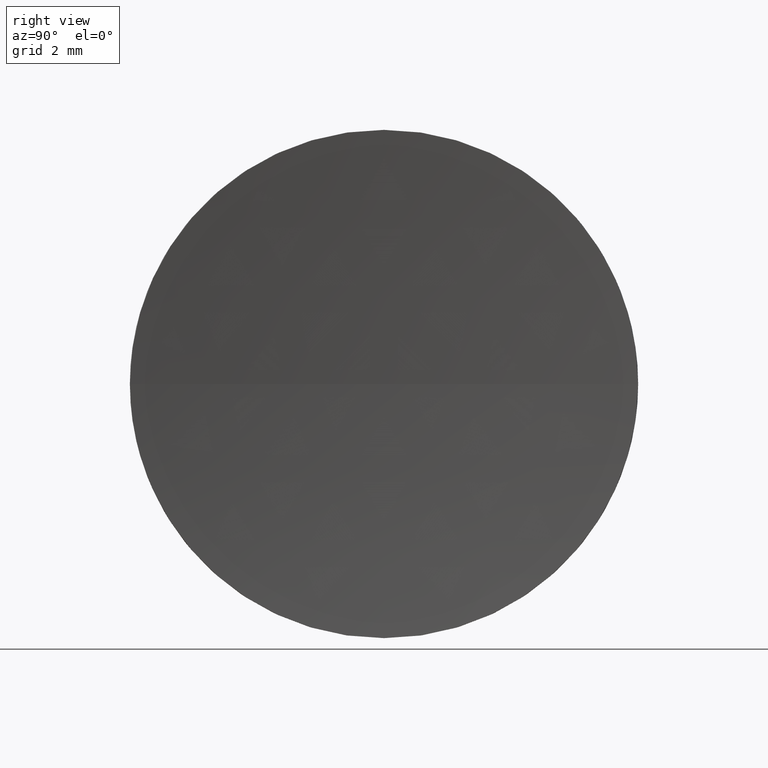
[diagram: clean part render]
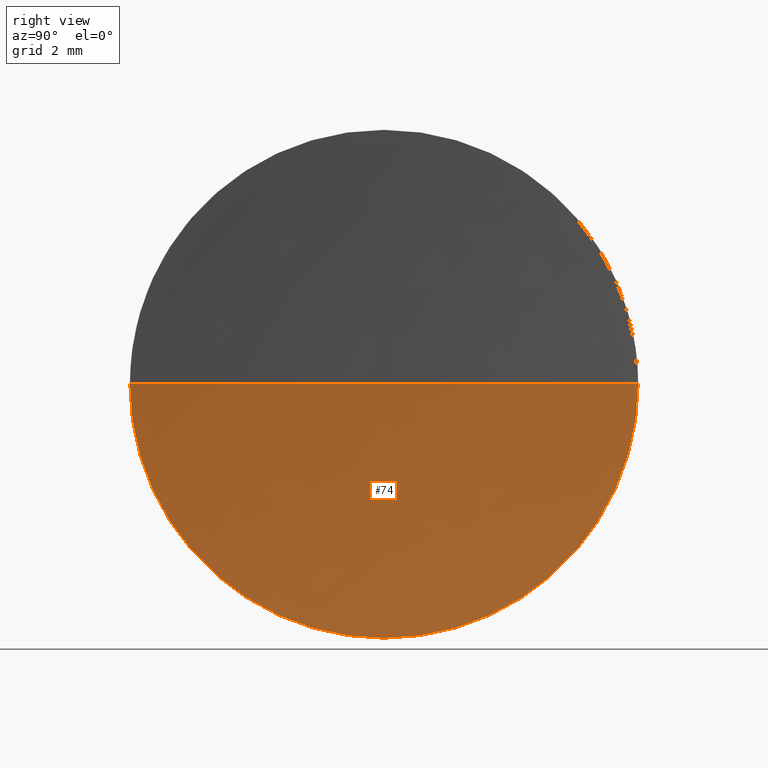
[diagram: same view with one face highlighted and labeled with its STEP entity id]
A machine part, right view. The second image highlights one B-rep face of the part: STEP entity #74.
In plain terms, the highlighted spherical surface has radius 60 mm.
Its self-contained STEP definition (entity closure, byte-faithful):
#8 = DIRECTION ( 'NONE',  ( 0.0000000000000000000, 0.0000000000000000000, 1.000000000000000000 ) ) ;
#10 = DIRECTION ( 'NONE',  ( 0.0000000000000000000, -1.000000000000000000, 0.0000000000000000000 ) ) ;
#21 = AXIS2_PLACEMENT_3D ( 'NONE', #34, #181, #8 ) ;
#22 = CARTESIAN_POINT ( 'NONE',  ( 120.5463276019670400, 34.68901056168622400, 0.0000000000000000000 ) ) ;
#31 = ORIENTED_EDGE ( 'NONE', *, *, #84, .F. ) ;
#34 = CARTESIAN_POINT ( 'NONE',  ( 60.87273629056698400, 34.68901056168621700, 0.0000000000000000000 ) ) ;
#35 = CARTESIAN_POINT ( 'NONE',  ( 60.87273629056698400, 28.43901056168619900, 0.0000000000000000000 ) ) ;
#42 = CIRCLE ( 'NONE', #97, 60.00000000000000700 ) ;
#44 = CIRCLE ( 'NONE', #182, 60.00000000000000700 ) ;
#48 = ORIENTED_EDGE ( 'NONE', *, *, #143, .F. ) ;
#54 = DIRECTION ( 'NONE',  ( 0.0000000000000000000, -1.000000000000000000, -1.224646799147353200E-016 ) ) ;
#60 = AXIS2_PLACEMENT_3D ( 'NONE', #108, #83, #180 ) ;
#67 = CARTESIAN_POINT ( 'NONE',  ( 120.5463276019670400, 34.68901056168622400, 0.0000000000000000000 ) ) ;
#68 = EDGE_CURVE ( 'NONE', #184, #175, #130, .T. ) ;
#70 = CARTESIAN_POINT ( 'NONE',  ( 120.5463276019670400, 34.68901056168622400, 0.0000000000000000000 ) ) ;
#74 = ADVANCED_FACE ( 'NONE', ( #89 ), #173, .F. ) ;
#81 = DIRECTION ( 'NONE',  ( 0.0000000000000000000, 0.0000000000000000000, 1.000000000000000000 ) ) ;
#83 = DIRECTION ( 'NONE',  ( -1.000000000000000000, -0.0000000000000000000, -0.0000000000000000000 ) ) ;
#84 = EDGE_CURVE ( 'NONE', #101, #96, #44, .T. ) ;
#89 = FACE_OUTER_BOUND ( 'NONE', #131, .T. ) ;
#93 = ORIENTED_EDGE ( 'NONE', *, *, #68, .F. ) ;
#96 = VERTEX_POINT ( 'NONE', #151 ) ;
#97 = AXIS2_PLACEMENT_3D ( 'NONE', #70, #137, #54 ) ;
#101 = VERTEX_POINT ( 'NONE', #35 ) ;
#108 = CARTESIAN_POINT ( 'NONE',  ( 60.87273629056698400, 34.68901056168621700, 0.0000000000000000000 ) ) ;
#109 = ORIENTED_EDGE ( 'NONE', *, *, #161, .T. ) ;
#112 = AXIS2_PLACEMENT_3D ( 'NONE', #67, #81, #10 ) ;
#124 = DIRECTION ( 'NONE',  ( 0.0000000000000000000, 0.0000000000000000000, -1.000000000000000000 ) ) ;
#130 = CIRCLE ( 'NONE', #21, 6.250000000000012400 ) ;
#131 = EDGE_LOOP ( 'NONE', ( #93, #109, #31, #48 ) ) ;
#137 = DIRECTION ( 'NONE',  ( 0.0000000000000000000, -1.224646799147353200E-016, 1.000000000000000000 ) ) ;
#143 = EDGE_CURVE ( 'NONE', #175, #101, #159, .T. ) ;
#150 = DIRECTION ( 'NONE',  ( -1.000000000000000000, 0.0000000000000000000, 0.0000000000000000000 ) ) ;
#151 = CARTESIAN_POINT ( 'NONE',  ( 60.54632760196703600, 34.68901056168621700, 0.0000000000000000000 ) ) ;
#159 = CIRCLE ( 'NONE', #60, 6.250000000000012400 ) ;
#161 = EDGE_CURVE ( 'NONE', #184, #96, #42, .T. ) ;
#173 = SPHERICAL_SURFACE ( 'NONE', #112, 60.00000000000000700 ) ;
#175 = VERTEX_POINT ( 'NONE', #179 ) ;
#179 = CARTESIAN_POINT ( 'NONE',  ( 60.87273629056698400, 34.68901056168621700, -6.250000000000012400 ) ) ;
#180 = DIRECTION ( 'NONE',  ( 0.0000000000000000000, 0.0000000000000000000, 1.000000000000000000 ) ) ;
#181 = DIRECTION ( 'NONE',  ( -1.000000000000000000, -0.0000000000000000000, -0.0000000000000000000 ) ) ;
#182 = AXIS2_PLACEMENT_3D ( 'NONE', #22, #124, #150 ) ;
#183 = CARTESIAN_POINT ( 'NONE',  ( 60.87273629056698400, 40.93901056168625300, 7.654042494670984200E-016 ) ) ;
#184 = VERTEX_POINT ( 'NONE', #183 ) ;